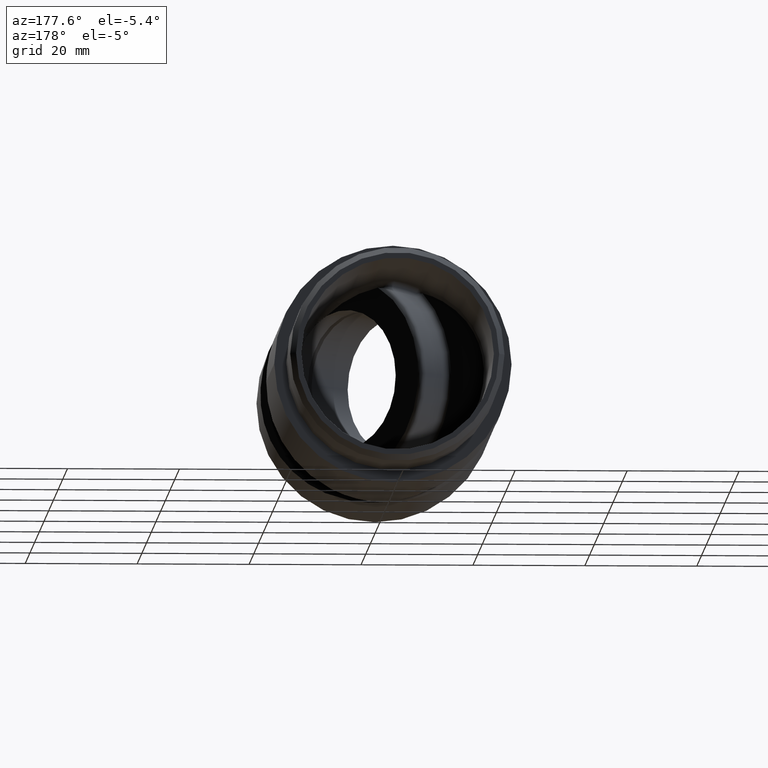
[diagram: clean part render]
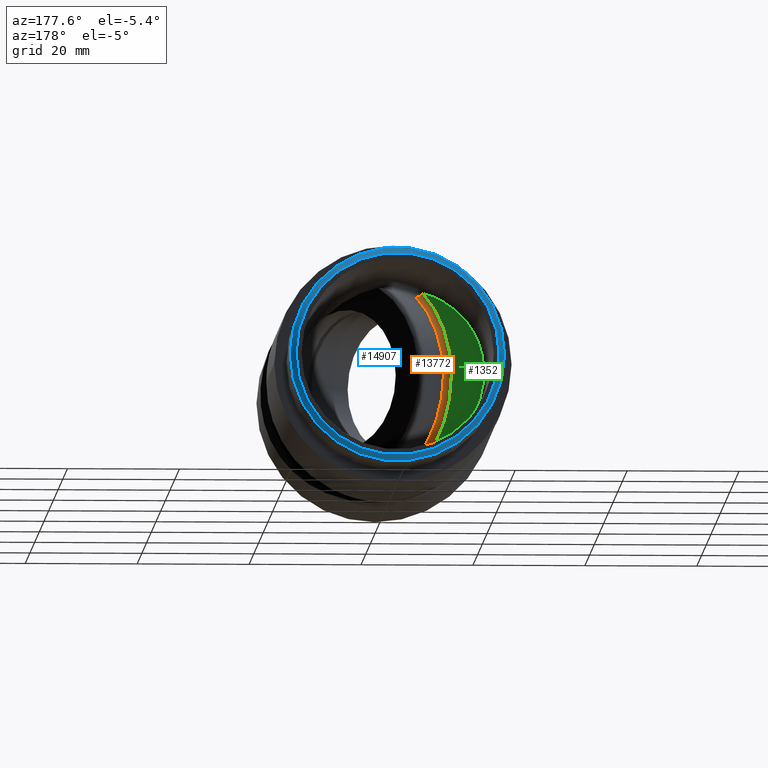
[diagram: same view with three faces highlighted in distinct colors, each labeled with its STEP entity id]
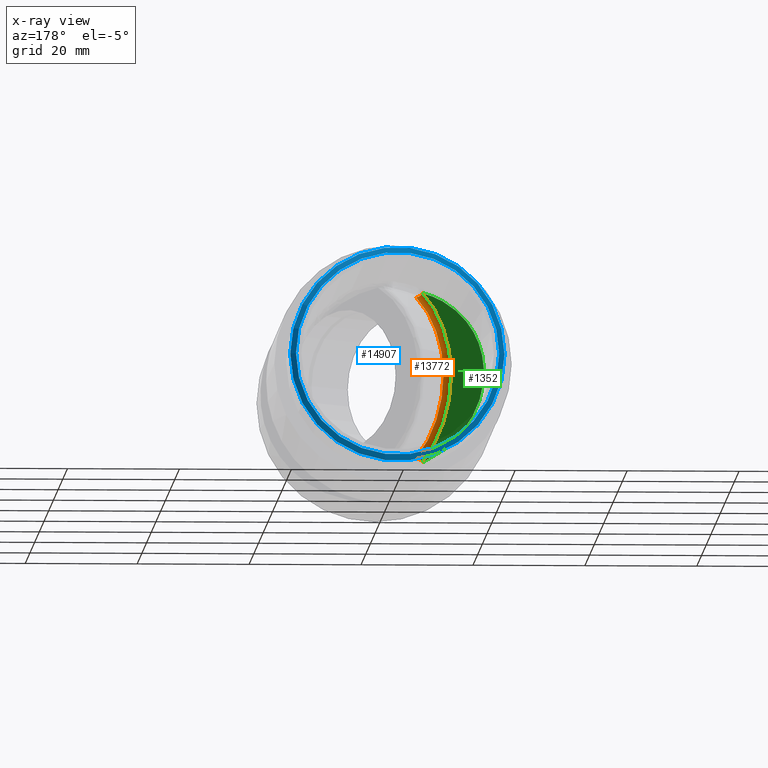
[diagram: x-ray of the same camera — body ghosted, the three highlighted faces saturated]
A machine part, auxiliary view with three faces highlighted in distinct colors.
The next image is the same camera in x-ray (body ghosted, the three faces saturated) — at least one of them is partly hidden behind the body in this view.
Their STEP definitions:

[orange] entity #13772 — the highlighted toroidal blend (fillet) surface has major radius 20 mm and minor (blend) radius 1 mm.
#1180 = DIRECTION ( 'NONE',  ( 0.0000000000000000000, -0.7720240666057901500, -0.6355932980935675700 ) ) ;
#1209 = AXIS2_PLACEMENT_3D ( 'NONE', #1606, #16066, #10147 ) ;
#1606 = CARTESIAN_POINT ( 'NONE',  ( -2.828427124746193800, 35.17157287525389400, 3.469446951953614200E-015 ) ) ;
#2075 = CARTESIAN_POINT ( 'NONE',  ( 6.385940929728419300, 25.95720482077923900, -15.17204148140105600 ) ) ;
#2310 = DIRECTION ( 'NONE',  ( 0.7071067811865462400, -0.7071067811865487900, 0.0000000000000000000 ) ) ;
#2334 = CIRCLE ( 'NONE', #1209, 20.00000000000000000 ) ;
#2366 = ORIENTED_EDGE ( 'NONE', *, *, #14836, .F. ) ;
#2625 = EDGE_LOOP ( 'NONE', ( #2366, #4005, #14335, #18126 ) ) ;
#2701 = CARTESIAN_POINT ( 'NONE',  ( 5.678834148541874100, 25.25009803959269700, -15.17204148140105600 ) ) ;
#4005 = ORIENTED_EDGE ( 'NONE', *, *, #12880, .F. ) ;
#4165 = CIRCLE ( 'NONE', #6345, 19.00000000000000000 ) ;
#4529 = DIRECTION ( 'NONE',  ( 0.7071067811865462400, -0.7071067811865489100, 0.0000000000000000000 ) ) ;
#5720 = VERTEX_POINT ( 'NONE', #14598 ) ;
#6210 = DIRECTION ( 'NONE',  ( 0.5364126707971165200, -0.5364126707971123000, -0.6515542135667707900 ) ) ;
#6345 = AXIS2_PLACEMENT_3D ( 'NONE', #14149, #16944, #2310 ) ;
#6435 = CIRCLE ( 'NONE', #7930, 0.9999999999999997800 ) ;
#7676 = CARTESIAN_POINT ( 'NONE',  ( 5.678834148541874100, 25.25009803959269000, 15.17204148140107200 ) ) ;
#7930 = AXIS2_PLACEMENT_3D ( 'NONE', #2701, #18756, #1180 ) ;
#8723 = TOROIDAL_SURFACE ( 'NONE', #10967, 20.00000000000000000, 1.000000000000000000 ) ;
#9076 = DIRECTION ( 'NONE',  ( -0.7720240666057917000, 0.0000000000000000000, -0.6355932980935656800 ) ) ;
#9637 = FACE_OUTER_BOUND ( 'NONE', #2625, .T. ) ;
#10147 = DIRECTION ( 'NONE',  ( 0.7071067811865462400, -0.7071067811865487900, 0.0000000000000000000 ) ) ;
#10967 = AXIS2_PLACEMENT_3D ( 'NONE', #11935, #14781, #4529 ) ;
#11935 = CARTESIAN_POINT ( 'NONE',  ( -3.535533905932745700, 34.46446609406734800, 3.469446951953614200E-015 ) ) ;
#12880 = EDGE_CURVE ( 'NONE', #5720, #12970, #4165, .T. ) ;
#12970 = VERTEX_POINT ( 'NONE', #15548 ) ;
#12980 = CARTESIAN_POINT ( 'NONE',  ( 6.385940929728419300, 25.95720482077923200, 15.17204148140107700 ) ) ;
#13176 = EDGE_CURVE ( 'NONE', #15400, #14416, #2334, .T. ) ;
#13255 = CIRCLE ( 'NONE', #14411, 1.000000000000000000 ) ;
#13772 = ADVANCED_FACE ( 'NONE', ( #9637 ), #8723, .F. ) ;
#14149 = CARTESIAN_POINT ( 'NONE',  ( -3.535533905932745700, 34.46446609406734800, 3.469446951953614200E-015 ) ) ;
#14335 = ORIENTED_EDGE ( 'NONE', *, *, #14585, .F. ) ;
#14411 = AXIS2_PLACEMENT_3D ( 'NONE', #7676, #6210, #9076 ) ;
#14416 = VERTEX_POINT ( 'NONE', #2075 ) ;
#14585 = EDGE_CURVE ( 'NONE', #14416, #5720, #6435, .T. ) ;
#14598 = CARTESIAN_POINT ( 'NONE',  ( 5.218115745818146000, 25.71081644231642500, -14.41343940733099600 ) ) ;
#14781 = DIRECTION ( 'NONE',  ( -0.7071067811865489100, -0.7071067811865462400, 0.0000000000000000000 ) ) ;
#14836 = EDGE_CURVE ( 'NONE', #12970, #15400, #13255, .T. ) ;
#15400 = VERTEX_POINT ( 'NONE', #12980 ) ;
#15548 = CARTESIAN_POINT ( 'NONE',  ( 5.218115745818146000, 25.71081644231643200, 14.41343940733101900 ) ) ;
#16066 = DIRECTION ( 'NONE',  ( 0.7071067811865489100, 0.7071067811865462400, -0.0000000000000000000 ) ) ;
#16944 = DIRECTION ( 'NONE',  ( -0.7071067811865489100, -0.7071067811865462400, 0.0000000000000000000 ) ) ;
#18126 = ORIENTED_EDGE ( 'NONE', *, *, #13176, .F. ) ;
#18756 = DIRECTION ( 'NONE',  ( 0.5364126707971153000, -0.5364126707971179600, 0.6515542135667672400 ) ) ;

[blue] entity #14907 — the highlighted conical surface has half-angle 45 deg.
#753 = EDGE_LOOP ( 'NONE', ( #15509 ) ) ;
#1898 = CIRCLE ( 'NONE', #16727, 19.15000000000000200 ) ;
#1991 = DIRECTION ( 'NONE',  ( 5.540639898357055100E-018, 1.000000000000000000, 0.0000000000000000000 ) ) ;
#3447 = DIRECTION ( 'NONE',  ( -1.000000000000000000, 0.0000000000000000000, 1.197398590121303800E-048 ) ) ;
#3560 = DIRECTION ( 'NONE',  ( 1.000000000000000000, 0.0000000000000000000, -1.197398590121303800E-048 ) ) ;
#3746 = CARTESIAN_POINT ( 'NONE',  ( 0.0000000000000000000, -19.00000000000000400, 0.0000000000000000000 ) ) ;
#4284 = DIRECTION ( 'NONE',  ( -5.540639898357055100E-018, -1.000000000000000000, 0.0000000000000000000 ) ) ;
#4805 = CARTESIAN_POINT ( 'NONE',  ( 18.15000000000001300, -20.00000000000000400, -3.104683487243096700E-048 ) ) ;
#6429 = VERTEX_POINT ( 'NONE', #12092 ) ;
#7413 = EDGE_LOOP ( 'NONE', ( #10545 ) ) ;
#7729 = CARTESIAN_POINT ( 'NONE',  ( 0.0000000000000000000, -20.00000000000000400, 0.0000000000000000000 ) ) ;
#8570 = DIRECTION ( 'NONE',  ( 1.000000000000000000, 0.0000000000000000000, -1.710569414459005200E-049 ) ) ;
#9539 = AXIS2_PLACEMENT_3D ( 'NONE', #10025, #4284, #8570 ) ;
#9613 = FACE_OUTER_BOUND ( 'NONE', #7413, .T. ) ;
#10025 = CARTESIAN_POINT ( 'NONE',  ( 0.0000000000000000000, -20.00000000000000400, 0.0000000000000000000 ) ) ;
#10545 = ORIENTED_EDGE ( 'NONE', *, *, #18452, .F. ) ;
#10869 = AXIS2_PLACEMENT_3D ( 'NONE', #7729, #1991, #3447 ) ;
#11675 = FACE_BOUND ( 'NONE', #753, .T. ) ;
#12092 = CARTESIAN_POINT ( 'NONE',  ( 19.15000000000000200, -19.00000000000000400, -2.293018300082297200E-047 ) ) ;
#12426 = DIRECTION ( 'NONE',  ( 5.540639898357055100E-018, 1.000000000000000000, -0.0000000000000000000 ) ) ;
#13699 = CONICAL_SURFACE ( 'NONE', #10869, 18.15000000000001300, 0.7853981633974430600 ) ;
#14605 = CIRCLE ( 'NONE', #9539, 18.15000000000001300 ) ;
#14907 = ADVANCED_FACE ( 'NONE', ( #9613, #11675 ), #13699, .T. ) ;
#15509 = ORIENTED_EDGE ( 'NONE', *, *, #17596, .F. ) ;
#15528 = VERTEX_POINT ( 'NONE', #4805 ) ;
#16727 = AXIS2_PLACEMENT_3D ( 'NONE', #3746, #12426, #3560 ) ;
#17596 = EDGE_CURVE ( 'NONE', #15528, #15528, #14605, .T. ) ;
#18452 = EDGE_CURVE ( 'NONE', #6429, #6429, #1898, .T. ) ;

[green] entity #1352 — the highlighted planar face has unit normal (0.7071, 0.7071, 0).
#374 = FACE_OUTER_BOUND ( 'NONE', #18570, .T. ) ;
#1209 = AXIS2_PLACEMENT_3D ( 'NONE', #1606, #16066, #10147 ) ;
#1352 = ADVANCED_FACE ( 'NONE', ( #374 ), #18599, .T. ) ;
#1606 = CARTESIAN_POINT ( 'NONE',  ( -2.828427124746193800, 35.17157287525389400, 3.469446951953614200E-015 ) ) ;
#2075 = CARTESIAN_POINT ( 'NONE',  ( 6.385940929728419300, 25.95720482077923900, -15.17204148140105600 ) ) ;
#2334 = CIRCLE ( 'NONE', #1209, 20.00000000000000000 ) ;
#2392 = ORIENTED_EDGE ( 'NONE', *, *, #5734, .T. ) ;
#5734 = EDGE_CURVE ( 'NONE', #14416, #15400, #11162, .T. ) ;
#5881 = CARTESIAN_POINT ( 'NONE',  ( 6.385940929728419300, 25.95720482077923200, 15.17204148140107700 ) ) ;
#6752 = CARTESIAN_POINT ( 'NONE',  ( -24.82842712474605300, 57.17157287525380100, -21.20000000000002400 ) ) ;
#7928 = AXIS2_PLACEMENT_3D ( 'NONE', #6752, #12617, #16985 ) ;
#10018 = CARTESIAN_POINT ( 'NONE',  ( 23.09205991133428200, 9.251085839173320800, 8.919008290142853600 ) ) ;
#10147 = DIRECTION ( 'NONE',  ( 0.7071067811865462400, -0.7071067811865487900, 0.0000000000000000000 ) ) ;
#11162 =( BOUNDED_CURVE ( )  B_SPLINE_CURVE ( 3, ( #11503, #17454, #10018, #5881 ),
 .UNSPECIFIED., .F., .T. ) 
 B_SPLINE_CURVE_WITH_KNOTS ( ( 4, 4 ),
 ( 1.928949632025254400, 4.354235675154331600 ),
 .UNSPECIFIED. ) 
 CURVE ( )  GEOMETRIC_REPRESENTATION_ITEM ( )  RATIONAL_B_SPLINE_CURVE ( ( 1.000000000000000000, 0.5670302118741517000, 0.5670302118741517000, 1.000000000000000000 ) ) 
 REPRESENTATION_ITEM ( '' )  );
#11503 = CARTESIAN_POINT ( 'NONE',  ( 6.385940929728419300, 25.95720482077923900, -15.17204148140105600 ) ) ;
#12617 = DIRECTION ( 'NONE',  ( -0.7071067811865489100, -0.7071067811865462400, 0.0000000000000000000 ) ) ;
#12980 = CARTESIAN_POINT ( 'NONE',  ( 6.385940929728419300, 25.95720482077923200, 15.17204148140107700 ) ) ;
#13176 = EDGE_CURVE ( 'NONE', #15400, #14416, #2334, .T. ) ;
#14416 = VERTEX_POINT ( 'NONE', #2075 ) ;
#15400 = VERTEX_POINT ( 'NONE', #12980 ) ;
#16066 = DIRECTION ( 'NONE',  ( 0.7071067811865489100, 0.7071067811865462400, -0.0000000000000000000 ) ) ;
#16985 = DIRECTION ( 'NONE',  ( 0.7071067811865462400, -0.7071067811865489100, 0.0000000000000000000 ) ) ;
#17112 = ORIENTED_EDGE ( 'NONE', *, *, #13176, .T. ) ;
#17454 = CARTESIAN_POINT ( 'NONE',  ( 23.09205991133427800, 9.251085839173324400, -8.919008290142864200 ) ) ;
#18570 = EDGE_LOOP ( 'NONE', ( #17112, #2392 ) ) ;
#18599 = PLANE ( 'NONE',  #7928 ) ;